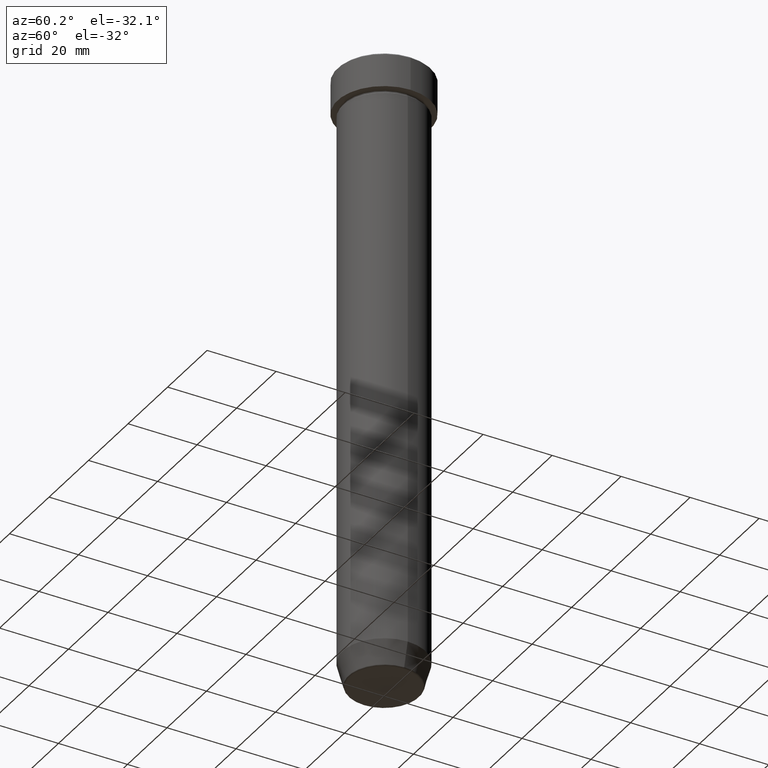
[diagram: clean part render]
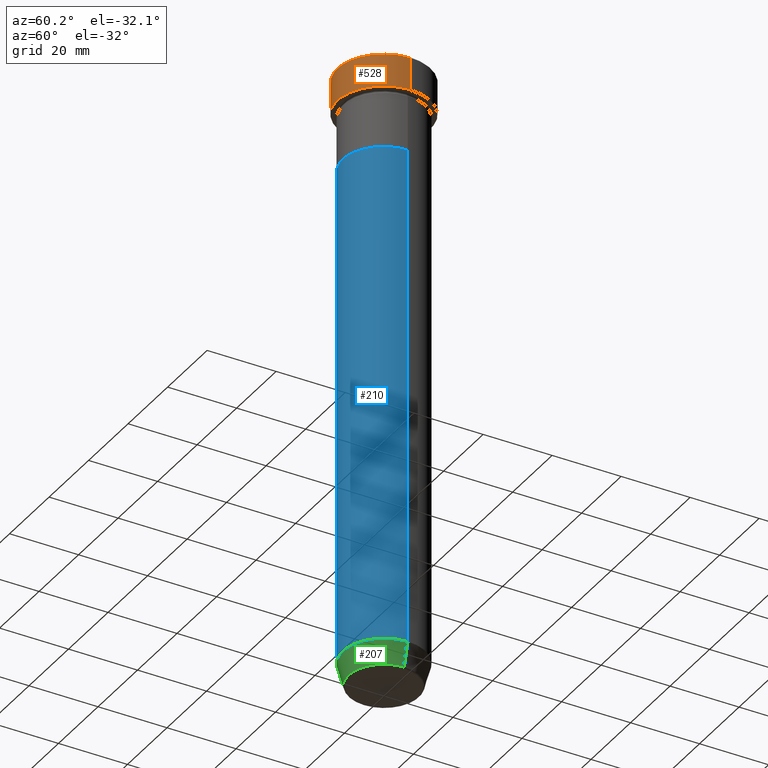
[diagram: same view with three faces highlighted in distinct colors, each labeled with its STEP entity id]
A machine part, auxiliary view with three faces highlighted in distinct colors.
Their STEP definitions:

[orange] entity #528 — the highlighted cylindrical surface (partial cylindrical patch) has radius 13.5 mm, axis along (-0, -0, 1).
#19 = EDGE_LOOP ( 'NONE', ( #67, #237, #356, #523 ) ) ;
#23 = CARTESIAN_POINT ( 'NONE',  ( 0.000000000000000000, 0.000000000000000000, 0.000000000000000000 ) ) ;
#33 = CARTESIAN_POINT ( 'NONE',  ( 0.000000000000000000, 0.000000000000000000, -0.5000000000000091038 ) ) ;
#36 = CYLINDRICAL_SURFACE ( 'NONE', #590, 13.50000000000000000 ) ;
#45 = DIRECTION ( 'NONE',  ( -0.000000000000000000, -0.000000000000000000, 1.000000000000000000 ) ) ;
#57 = DIRECTION ( 'NONE',  ( 1.000000000000000000, 0.000000000000000000, 0.000000000000000000 ) ) ;
#67 = ORIENTED_EDGE ( 'NONE', *, *, #195, .F. ) ;
#86 = FACE_OUTER_BOUND ( 'NONE', #19, .T. ) ;
#97 = LINE ( 'NONE', #248, #175 ) ;
#135 = LINE ( 'NONE', #306, #320 ) ;
#151 = DIRECTION ( 'NONE',  ( 1.000000000000000000, 0.000000000000000000, 0.000000000000000000 ) ) ;
#152 = VERTEX_POINT ( 'NONE', #315 ) ;
#175 = VECTOR ( 'NONE', #45, 1000.000000000000000 ) ;
#193 = CARTESIAN_POINT ( 'NONE',  ( -13.50000000000000000, 1.653273178848926867E-15, -0.5000000000000091038 ) ) ;
#195 = EDGE_CURVE ( 'NONE', #152, #430, #97, .T. ) ;
#196 = VERTEX_POINT ( 'NONE', #244 ) ;
#215 = AXIS2_PLACEMENT_3D ( 'NONE', #404, #455, #57 ) ;
#236 = DIRECTION ( 'NONE',  ( -0.000000000000000000, -0.000000000000000000, 1.000000000000000000 ) ) ;
#237 = ORIENTED_EDGE ( 'NONE', *, *, #568, .T. ) ;
#244 = CARTESIAN_POINT ( 'NONE',  ( 13.50000000000000000, 0.000000000000000000, -0.5000000000000091038 ) ) ;
#247 = AXIS2_PLACEMENT_3D ( 'NONE', #33, #340, #151 ) ;
#248 = CARTESIAN_POINT ( 'NONE',  ( -13.50000000000000000, 1.653273178848926867E-15, 0.000000000000000000 ) ) ;
#306 = CARTESIAN_POINT ( 'NONE',  ( 13.50000000000000000, 0.000000000000000000, 0.000000000000000000 ) ) ;
#315 = CARTESIAN_POINT ( 'NONE',  ( -13.50000000000000000, 1.653273178848926867E-15, -10.00000000000000000 ) ) ;
#320 = VECTOR ( 'NONE', #491, 1000.000000000000000 ) ;
#340 = DIRECTION ( 'NONE',  ( 0.000000000000000000, 0.000000000000000000, -1.000000000000000000 ) ) ;
#356 = ORIENTED_EDGE ( 'NONE', *, *, #434, .T. ) ;
#400 = CIRCLE ( 'NONE', #247, 13.50000000000000000 ) ;
#402 = DIRECTION ( 'NONE',  ( 1.000000000000000000, 0.000000000000000000, 0.000000000000000000 ) ) ;
#404 = CARTESIAN_POINT ( 'NONE',  ( 0.000000000000000000, 0.000000000000000000, -10.00000000000000000 ) ) ;
#411 = CARTESIAN_POINT ( 'NONE',  ( 13.50000000000000000, 0.000000000000000000, -10.00000000000000000 ) ) ;
#430 = VERTEX_POINT ( 'NONE', #193 ) ;
#434 = EDGE_CURVE ( 'NONE', #573, #196, #135, .T. ) ;
#455 = DIRECTION ( 'NONE',  ( -0.000000000000000000, -0.000000000000000000, 1.000000000000000000 ) ) ;
#491 = DIRECTION ( 'NONE',  ( -0.000000000000000000, -0.000000000000000000, 1.000000000000000000 ) ) ;
#523 = ORIENTED_EDGE ( 'NONE', *, *, #562, .T. ) ;
#526 = CIRCLE ( 'NONE', #215, 13.50000000000000000 ) ;
#528 = ADVANCED_FACE ( 'NONE', ( #86 ), #36, .T. ) ;
#562 = EDGE_CURVE ( 'NONE', #196, #430, #400, .T. ) ;
#568 = EDGE_CURVE ( 'NONE', #152, #573, #526, .T. ) ;
#573 = VERTEX_POINT ( 'NONE', #411 ) ;
#590 = AXIS2_PLACEMENT_3D ( 'NONE', #23, #236, #402 ) ;

[blue] entity #210 — the highlighted cylindrical surface (partial cylindrical patch) has radius 12 mm, axis along (-0, -0, 1).
#2 = VECTOR ( 'NONE', #524, 1000.000000000000000 ) ;
#4 = CIRCLE ( 'NONE', #415, 12.00000000000000000 ) ;
#10 = EDGE_CURVE ( 'NONE', #264, #260, #48, .T. ) ;
#48 = CIRCLE ( 'NONE', #154, 12.00000000000000000 ) ;
#90 = EDGE_CURVE ( 'NONE', #264, #570, #485, .T. ) ;
#99 = LINE ( 'NONE', #593, #462 ) ;
#148 = DIRECTION ( 'NONE',  ( -0.000000000000000000, -0.000000000000000000, 1.000000000000000000 ) ) ;
#154 = AXIS2_PLACEMENT_3D ( 'NONE', #158, #148, #456 ) ;
#158 = CARTESIAN_POINT ( 'NONE',  ( 0.000000000000000000, 0.000000000000000000, -173.0000000000000000 ) ) ;
#173 = ORIENTED_EDGE ( 'NONE', *, *, #353, .T. ) ;
#203 = FACE_OUTER_BOUND ( 'NONE', #213, .T. ) ;
#210 = ADVANCED_FACE ( 'NONE', ( #203 ), #507, .T. ) ;
#213 = EDGE_LOOP ( 'NONE', ( #241, #576, #173, #396 ) ) ;
#241 = ORIENTED_EDGE ( 'NONE', *, *, #90, .F. ) ;
#253 = CARTESIAN_POINT ( 'NONE',  ( -12.00000000000000000, 1.469576158976823947E-15, -27.00000000000000000 ) ) ;
#260 = VERTEX_POINT ( 'NONE', #559 ) ;
#264 = VERTEX_POINT ( 'NONE', #331 ) ;
#282 = AXIS2_PLACEMENT_3D ( 'NONE', #371, #514, #554 ) ;
#300 = CARTESIAN_POINT ( 'NONE',  ( 12.00000000000000000, 0.000000000000000000, -27.00000000000000000 ) ) ;
#331 = CARTESIAN_POINT ( 'NONE',  ( -12.00000000000000000, 1.469576158976823947E-15, -173.0000000000000000 ) ) ;
#353 = EDGE_CURVE ( 'NONE', #260, #394, #99, .T. ) ;
#371 = CARTESIAN_POINT ( 'NONE',  ( 0.000000000000000000, 0.000000000000000000, 0.000000000000000000 ) ) ;
#389 = CARTESIAN_POINT ( 'NONE',  ( -12.00000000000000000, 1.469576158976823947E-15, 0.000000000000000000 ) ) ;
#394 = VERTEX_POINT ( 'NONE', #300 ) ;
#396 = ORIENTED_EDGE ( 'NONE', *, *, #582, .F. ) ;
#399 = DIRECTION ( 'NONE',  ( -0.000000000000000000, -0.000000000000000000, 1.000000000000000000 ) ) ;
#415 = AXIS2_PLACEMENT_3D ( 'NONE', #584, #535, #599 ) ;
#456 = DIRECTION ( 'NONE',  ( 1.000000000000000000, 0.000000000000000000, 0.000000000000000000 ) ) ;
#462 = VECTOR ( 'NONE', #399, 1000.000000000000000 ) ;
#485 = LINE ( 'NONE', #389, #2 ) ;
#507 = CYLINDRICAL_SURFACE ( 'NONE', #282, 12.00000000000000000 ) ;
#514 = DIRECTION ( 'NONE',  ( -0.000000000000000000, -0.000000000000000000, 1.000000000000000000 ) ) ;
#524 = DIRECTION ( 'NONE',  ( -0.000000000000000000, -0.000000000000000000, 1.000000000000000000 ) ) ;
#535 = DIRECTION ( 'NONE',  ( -0.000000000000000000, -0.000000000000000000, 1.000000000000000000 ) ) ;
#554 = DIRECTION ( 'NONE',  ( 1.000000000000000000, 0.000000000000000000, 0.000000000000000000 ) ) ;
#559 = CARTESIAN_POINT ( 'NONE',  ( 12.00000000000000000, 0.000000000000000000, -173.0000000000000000 ) ) ;
#570 = VERTEX_POINT ( 'NONE', #253 ) ;
#576 = ORIENTED_EDGE ( 'NONE', *, *, #10, .T. ) ;
#582 = EDGE_CURVE ( 'NONE', #570, #394, #4, .T. ) ;
#584 = CARTESIAN_POINT ( 'NONE',  ( 0.000000000000000000, 0.000000000000000000, -27.00000000000000000 ) ) ;
#593 = CARTESIAN_POINT ( 'NONE',  ( 12.00000000000000000, 0.000000000000000000, 0.000000000000000000 ) ) ;
#599 = DIRECTION ( 'NONE',  ( 1.000000000000000000, 0.000000000000000000, 0.000000000000000000 ) ) ;

[green] entity #207 — the highlighted conical surface has half-angle 15 deg.
#10 = EDGE_CURVE ( 'NONE', #264, #260, #48, .T. ) ;
#21 = ORIENTED_EDGE ( 'NONE', *, *, #10, .F. ) ;
#29 = EDGE_CURVE ( 'NONE', #521, #260, #471, .T. ) ;
#47 = EDGE_LOOP ( 'NONE', ( #575, #218, #391, #21 ) ) ;
#48 = CIRCLE ( 'NONE', #154, 12.00000000000000000 ) ;
#58 = DIRECTION ( 'NONE',  ( -1.000000000000000000, 0.000000000000000000, 0.000000000000000000 ) ) ;
#77 = CARTESIAN_POINT ( 'NONE',  ( 10.22365507213718416, 0.000000000000000000, -179.6294095225512422 ) ) ;
#81 = AXIS2_PLACEMENT_3D ( 'NONE', #162, #512, #58 ) ;
#103 = CIRCLE ( 'NONE', #81, 10.22365507213718416 ) ;
#133 = CARTESIAN_POINT ( 'NONE',  ( -10.22365507213718416, 1.360806402472382153E-15, -179.6294095225512422 ) ) ;
#147 = CARTESIAN_POINT ( 'NONE',  ( -10.12435565298213369, 1.239875974385398152E-15, -180.0000000000000000 ) ) ;
#148 = DIRECTION ( 'NONE',  ( -0.000000000000000000, -0.000000000000000000, 1.000000000000000000 ) ) ;
#154 = AXIS2_PLACEMENT_3D ( 'NONE', #158, #148, #456 ) ;
#158 = CARTESIAN_POINT ( 'NONE',  ( 0.000000000000000000, 0.000000000000000000, -173.0000000000000000 ) ) ;
#162 = CARTESIAN_POINT ( 'NONE',  ( 0.000000000000000000, 0.000000000000000000, -179.6294095225512422 ) ) ;
#189 = DIRECTION ( 'NONE',  ( -0.2588190451025214611, 3.169619151431774186E-17, 0.9659258262890679791 ) ) ;
#207 = ADVANCED_FACE ( 'NONE', ( #405 ), #525, .T. ) ;
#218 = ORIENTED_EDGE ( 'NONE', *, *, #266, .T. ) ;
#260 = VERTEX_POINT ( 'NONE', #559 ) ;
#264 = VERTEX_POINT ( 'NONE', #331 ) ;
#266 = EDGE_CURVE ( 'NONE', #519, #521, #103, .T. ) ;
#269 = VECTOR ( 'NONE', #189, 1000.000000000000114 ) ;
#313 = LINE ( 'NONE', #147, #269 ) ;
#318 = DIRECTION ( 'NONE',  ( -0.000000000000000000, -0.000000000000000000, 1.000000000000000000 ) ) ;
#331 = CARTESIAN_POINT ( 'NONE',  ( -12.00000000000000000, 1.469576158976823947E-15, -173.0000000000000000 ) ) ;
#391 = ORIENTED_EDGE ( 'NONE', *, *, #29, .T. ) ;
#392 = CARTESIAN_POINT ( 'NONE',  ( 10.12435565298213369, 0.000000000000000000, -180.0000000000000000 ) ) ;
#405 = FACE_OUTER_BOUND ( 'NONE', #47, .T. ) ;
#406 = CARTESIAN_POINT ( 'NONE',  ( 0.000000000000000000, 0.000000000000000000, -180.0000000000000000 ) ) ;
#413 = EDGE_CURVE ( 'NONE', #519, #264, #313, .T. ) ;
#456 = DIRECTION ( 'NONE',  ( 1.000000000000000000, 0.000000000000000000, 0.000000000000000000 ) ) ;
#471 = LINE ( 'NONE', #392, #508 ) ;
#475 = DIRECTION ( 'NONE',  ( 0.2588190451025214611, 0.000000000000000000, 0.9659258262890679791 ) ) ;
#508 = VECTOR ( 'NONE', #475, 1000.000000000000114 ) ;
#512 = DIRECTION ( 'NONE',  ( -0.000000000000000000, -0.000000000000000000, 1.000000000000000000 ) ) ;
#519 = VERTEX_POINT ( 'NONE', #133 ) ;
#521 = VERTEX_POINT ( 'NONE', #77 ) ;
#525 = CONICAL_SURFACE ( 'NONE', #538, 10.12435565298213369, 0.2617993877991502405 ) ;
#538 = AXIS2_PLACEMENT_3D ( 'NONE', #406, #318, #591 ) ;
#559 = CARTESIAN_POINT ( 'NONE',  ( 12.00000000000000000, 0.000000000000000000, -173.0000000000000000 ) ) ;
#575 = ORIENTED_EDGE ( 'NONE', *, *, #413, .F. ) ;
#591 = DIRECTION ( 'NONE',  ( 1.000000000000000000, 0.000000000000000000, 0.000000000000000000 ) ) ;